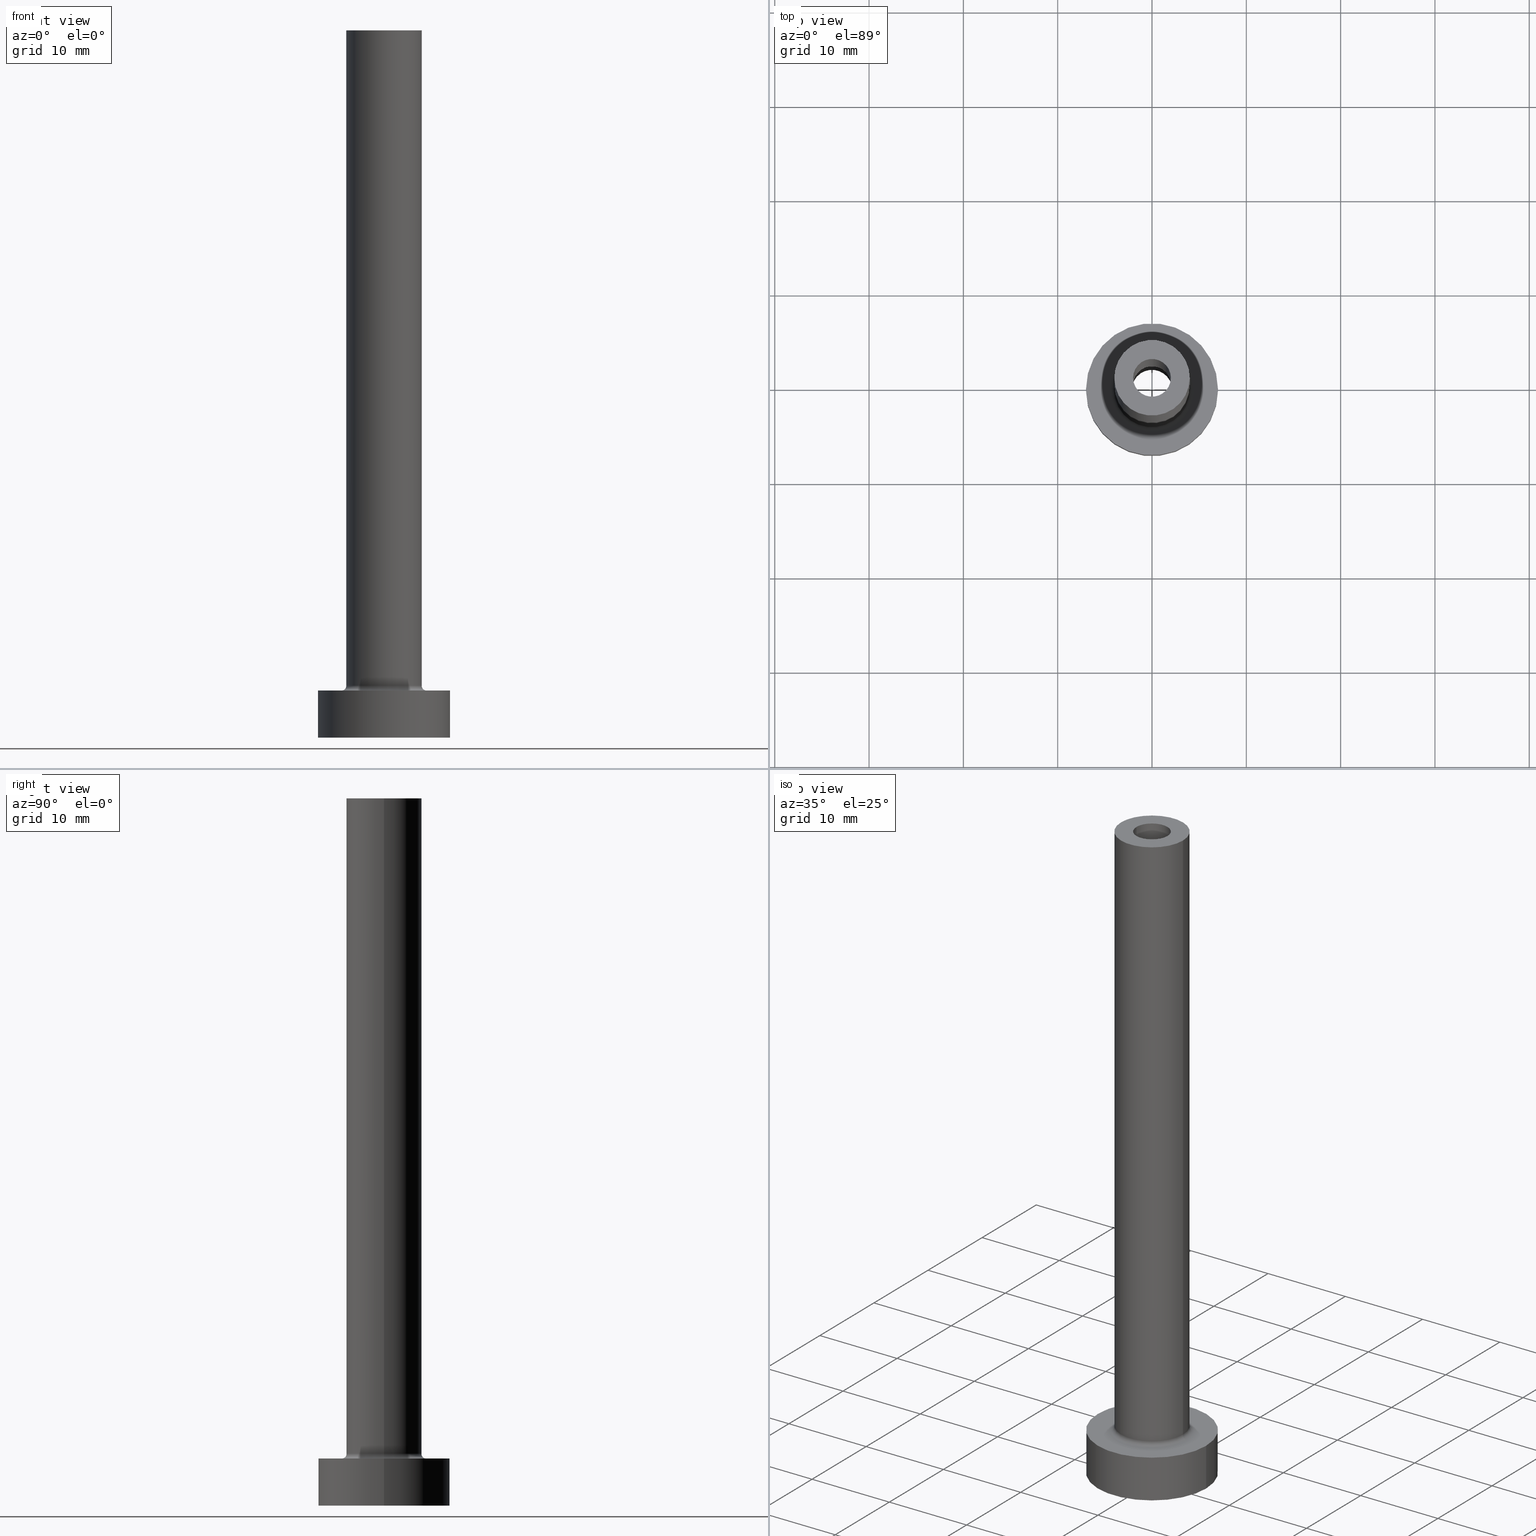
[diagram: canonical four-view strip — front | top / right | iso, engineering-drawing reading convention]
A machine part, canonical four-view strip (front | top / right | iso — engineering-drawing reading convention). The complete STEP part file that produces these views, byte-faithful:
ISO-10303-21;
HEADER;
FILE_DESCRIPTION (( 'STEP AP203' ),
    '1' );
FILE_NAME ('1875.STEP',
    '2023-02-13T17:40:39',
    ( '' ),
    ( '' ),
    'SwSTEP 2.0',
    'SolidWorks 2019',
    '' );
FILE_SCHEMA (( 'CONFIG_CONTROL_DESIGN' ));
ENDSEC;

DATA;
#1 = ORIENTED_EDGE ( 'NONE', *, *, #8, .T. ) ;
#2 = DIRECTION ( 'NONE',  ( 1.000000000000000000, 0.000000000000000000, 0.000000000000000000 ) ) ;
#3 = CARTESIAN_POINT ( 'NONE',  ( -4.000000000000000000, 0.000000000000000000, 75.00000000000001421 ) ) ;
#4 = DIRECTION ( 'NONE',  ( 0.000000000000000000, 0.000000000000000000, 1.000000000000000000 ) ) ;
#5 = CIRCLE ( 'NONE', #27, 2.149999999999999911 ) ;
#6 = AXIS2_PLACEMENT_3D ( 'NONE', #329, #110, #19 ) ;
#7 = DATE_AND_TIME ( #180, #420 ) ;
#8 = EDGE_CURVE ( 'NONE', #32, #313, #249, .T. ) ;
#9 = DIRECTION ( 'NONE',  ( -1.000000000000000000, 0.000000000000000000, 0.000000000000000000 ) ) ;
#10 = DIRECTION ( 'NONE',  ( -1.000000000000000000, 0.000000000000000000, 0.000000000000000000 ) ) ;
#11 = ORIENTED_EDGE ( 'NONE', *, *, #423, .T. ) ;
#12 = LINE ( 'NONE', #149, #281 ) ;
#13 = CC_DESIGN_PERSON_AND_ORGANIZATION_ASSIGNMENT ( #34, #173, ( #156 ) ) ;
#14 = AXIS2_PLACEMENT_3D ( 'NONE', #56, #90, #59 ) ;
#15 = CARTESIAN_POINT ( 'NONE',  ( 2.149999999999999911, 2.632990618166808742E-16, 0.000000000000000000 ) ) ;
#16 = AXIS2_PLACEMENT_3D ( 'NONE', #233, #60, #132 ) ;
#17 = ORIENTED_EDGE ( 'NONE', *, *, #345, .F. ) ;
#18 = DIRECTION ( 'NONE',  ( 1.000000000000000000, 0.000000000000000000, -0.000000000000000000 ) ) ;
#19 = DIRECTION ( 'NONE',  ( -1.000000000000000000, 0.000000000000000000, 0.000000000000000000 ) ) ;
#20 = DIRECTION ( 'NONE',  ( 0.000000000000000000, 0.000000000000000000, 1.000000000000000000 ) ) ;
#21 = UNCERTAINTY_MEASURE_WITH_UNIT (LENGTH_MEASURE( 1.000000000000000082E-05 ), #65, 'distance_accuracy_value', 'NONE');
#22 = CIRCLE ( 'NONE', #274, 2.149999999999999911 ) ;
#23 = ADVANCED_FACE ( 'NONE', ( #92, #237 ), #349, .F. ) ;
#24 = ORIENTED_EDGE ( 'NONE', *, *, #289, .F. ) ;
#25 = DIRECTION ( 'NONE',  ( -1.000000000000000000, 0.000000000000000000, 0.000000000000000000 ) ) ;
#26 = EDGE_LOOP ( 'NONE', ( #284, #224 ) ) ;
#27 = AXIS2_PLACEMENT_3D ( 'NONE', #67, #42, #177 ) ;
#28 = AXIS2_PLACEMENT_3D ( 'NONE', #363, #152, #448 ) ;
#29 = DIRECTION ( 'NONE',  ( 1.000000000000000000, 0.000000000000000000, 0.000000000000000000 ) ) ;
#30 = CARTESIAN_POINT ( 'NONE',  ( 0.000000000000000000, 0.000000000000000000, 0.000000000000000000 ) ) ;
#31 = AXIS2_PLACEMENT_3D ( 'NONE', #163, #236, #29 ) ;
#32 = VERTEX_POINT ( 'NONE', #315 ) ;
#33 = VERTEX_POINT ( 'NONE', #157 ) ;
#34 = PERSON_AND_ORGANIZATION ( #265, #49 ) ;
#35 = CC_DESIGN_APPROVAL ( #206, ( #73 ) ) ;
#36 = ORIENTED_EDGE ( 'NONE', *, *, #119, .T. ) ;
#37 = PERSON_AND_ORGANIZATION ( #265, #49 ) ;
#38 = EDGE_CURVE ( 'NONE', #232, #361, #159, .T. ) ;
#39 = EDGE_LOOP ( 'NONE', ( #457, #81, #346, #352 ) ) ;
#40 = ADVANCED_FACE ( 'NONE', ( #223 ), #151, .F. ) ;
#41 = APPLICATION_PROTOCOL_DEFINITION ( 'international standard', 'config_control_design', 1994, #203 ) ;
#42 = DIRECTION ( 'NONE',  ( -0.000000000000000000, -0.000000000000000000, -1.000000000000000000 ) ) ;
#43 = ADVANCED_BREP_SHAPE_REPRESENTATION ( '1875', ( #272, #377 ), #111 ) ;
#44 = AXIS2_PLACEMENT_3D ( 'NONE', #190, #184, #333 ) ;
#45 = APPROVAL ( #382, 'NEUR�EN�' ) ;
#46 = DIRECTION ( 'NONE',  ( 0.000000000000000000, 0.000000000000000000, -1.000000000000000000 ) ) ;
#47 = EDGE_LOOP ( 'NONE', ( #85, #36, #437, #24 ) ) ;
#48 = DIRECTION ( 'NONE',  ( 0.000000000000000000, 0.000000000000000000, 1.000000000000000000 ) ) ;
#49 = ORGANIZATION ( 'NEUR�EN�', 'NEUR�EN�', '' ) ;
#50 = ORIENTED_EDGE ( 'NONE', *, *, #153, .F. ) ;
#51 = CARTESIAN_POINT ( 'NONE',  ( 2.149999999999999911, 2.632990618166808742E-16, 30.00000000000001421 ) ) ;
#52 = LINE ( 'NONE', #217, #208 ) ;
#53 = CC_DESIGN_PERSON_AND_ORGANIZATION_ASSIGNMENT ( #70, #353, ( #212 ) ) ;
#54 = TOROIDAL_SURFACE ( 'NONE', #436, 4.500000000000000888, 0.5000000000000000000 ) ;
#55 = ORIENTED_EDGE ( 'NONE', *, *, #117, .T. ) ;
#56 = CARTESIAN_POINT ( 'NONE',  ( 0.000000000000000000, 0.000000000000000000, 5.000000000000000000 ) ) ;
#57 = AXIS2_PLACEMENT_3D ( 'NONE', #305, #87, #83 ) ;
#58 = CARTESIAN_POINT ( 'NONE',  ( -7.000000000000000000, 0.000000000000000000, 5.000000000000000000 ) ) ;
#59 = DIRECTION ( 'NONE',  ( 1.000000000000000000, 0.000000000000000000, 0.000000000000000000 ) ) ;
#60 = DIRECTION ( 'NONE',  ( 0.000000000000000000, 0.000000000000000000, 1.000000000000000000 ) ) ;
#61 = VERTEX_POINT ( 'NONE', #341 ) ;
#62 = DIRECTION ( 'NONE',  ( 0.000000000000000000, 0.000000000000000000, 1.000000000000000000 ) ) ;
#63 = ADVANCED_FACE ( 'NONE', ( #150 ), #192, .F. ) ;
#64 = PERSON_AND_ORGANIZATION ( #265, #49 ) ;
#65 =( LENGTH_UNIT ( ) NAMED_UNIT ( * ) SI_UNIT ( .MILLI., .METRE. ) );
#66 = AXIS2_PLACEMENT_3D ( 'NONE', #390, #321, #318 ) ;
#67 = CARTESIAN_POINT ( 'NONE',  ( 0.000000000000000000, 0.000000000000000000, 0.000000000000000000 ) ) ;
#68 = AXIS2_PLACEMENT_3D ( 'NONE', #278, #348, #124 ) ;
#69 = EDGE_CURVE ( 'NONE', #198, #368, #221, .T. ) ;
#70 = PERSON_AND_ORGANIZATION ( #265, #49 ) ;
#71 = PLANE ( 'NONE',  #170 ) ;
#72 = CARTESIAN_POINT ( 'NONE',  ( -2.149999999999999911, 0.000000000000000000, 30.00000000000001421 ) ) ;
#73 = SECURITY_CLASSIFICATION ( '', '', #189 ) ;
#74 = CARTESIAN_POINT ( 'NONE',  ( 0.000000000000000000, 0.000000000000000000, 75.00000000000001421 ) ) ;
#75 = CARTESIAN_POINT ( 'NONE',  ( 0.000000000000000000, 0.000000000000000000, 30.00000000000001421 ) ) ;
#76 = DIRECTION ( 'NONE',  ( 0.000000000000000000, 0.000000000000000000, 1.000000000000000000 ) ) ;
#77 = ORIENTED_EDGE ( 'NONE', *, *, #309, .F. ) ;
#78 = PRODUCT ( '1875', '1875', '', ( #100 ) ) ;
#79 = CARTESIAN_POINT ( 'NONE',  ( 4.000000000000000000, 4.898587196589412829E-16, 75.00000000000001421 ) ) ;
#80 = AXIS2_PLACEMENT_3D ( 'NONE', #385, #426, #101 ) ;
#81 = ORIENTED_EDGE ( 'NONE', *, *, #8, .F. ) ;
#82 = CARTESIAN_POINT ( 'NONE',  ( -4.000000000000000000, 0.000000000000000000, 5.500000000000005329 ) ) ;
#83 = DIRECTION ( 'NONE',  ( 1.000000000000000000, 0.000000000000000000, 0.000000000000000000 ) ) ;
#84 = ADVANCED_FACE ( 'NONE', ( #401 ), #302, .T. ) ;
#85 = ORIENTED_EDGE ( 'NONE', *, *, #345, .T. ) ;
#86 = FACE_OUTER_BOUND ( 'NONE', #411, .T. ) ;
#87 = DIRECTION ( 'NONE',  ( -0.000000000000000000, -0.000000000000000000, -1.000000000000000000 ) ) ;
#88 = DIRECTION ( 'NONE',  ( 0.000000000000000000, 0.000000000000000000, 1.000000000000000000 ) ) ;
#89 = EDGE_CURVE ( 'NONE', #313, #32, #210, .T. ) ;
#90 = DIRECTION ( 'NONE',  ( 0.000000000000000000, 0.000000000000000000, 1.000000000000000000 ) ) ;
#91 = CARTESIAN_POINT ( 'NONE',  ( 0.000000000000000000, 0.000000000000000000, 0.000000000000000000 ) ) ;
#92 = FACE_BOUND ( 'NONE', #171, .T. ) ;
#93 = CARTESIAN_POINT ( 'NONE',  ( -7.000000000000000000, 0.000000000000000000, 0.000000000000000000 ) ) ;
#94 = CC_DESIGN_APPROVAL ( #134, ( #212 ) ) ;
#95 = EDGE_CURVE ( 'NONE', #33, #128, #96, .T. ) ;
#96 = CIRCLE ( 'NONE', #130, 7.000000000000000000 ) ;
#97 = ORIENTED_EDGE ( 'NONE', *, *, #289, .T. ) ;
#98 = DATE_AND_TIME ( #316, #200 ) ;
#99 = FACE_OUTER_BOUND ( 'NONE', #202, .T. ) ;
#100 = MECHANICAL_CONTEXT ( 'NONE', #203, 'mechanical' ) ;
#101 = DIRECTION ( 'NONE',  ( 1.000000000000000000, 0.000000000000000000, -0.000000000000000000 ) ) ;
#102 = VECTOR ( 'NONE', #327, 1000.000000000000000 ) ;
#103 = CARTESIAN_POINT ( 'NONE',  ( -2.149999999999999911, 0.000000000000000000, 0.000000000000000000 ) ) ;
#104 = VECTOR ( 'NONE', #118, 1000.000000000000000 ) ;
#105 = DIRECTION ( 'NONE',  ( 0.000000000000000000, 0.000000000000000000, 1.000000000000000000 ) ) ;
#106 = CARTESIAN_POINT ( 'NONE',  ( 4.500000000000000888, 0.000000000000000000, 5.000000000000002665 ) ) ;
#107 = VERTEX_POINT ( 'NONE', #58 ) ;
#108 = CARTESIAN_POINT ( 'NONE',  ( 7.000000000000000000, 8.572527594031473190E-16, 5.000000000000000000 ) ) ;
#109 = CARTESIAN_POINT ( 'NONE',  ( 0.000000000000000000, 0.000000000000000000, 5.000000000000000000 ) ) ;
#110 = DIRECTION ( 'NONE',  ( -0.000000000000000000, -0.000000000000000000, -1.000000000000000000 ) ) ;
#111 =( GEOMETRIC_REPRESENTATION_CONTEXT ( 3 ) GLOBAL_UNCERTAINTY_ASSIGNED_CONTEXT ( ( #21 ) ) GLOBAL_UNIT_ASSIGNED_CONTEXT ( ( #65, #430, #380 ) ) REPRESENTATION_CONTEXT ( 'NONE', 'WORKASPACE' ) );
#112 = CARTESIAN_POINT ( 'NONE',  ( 0.000000000000000000, 0.000000000000000000, 5.500000000000005329 ) ) ;
#113 = DIRECTION ( 'NONE',  ( 0.000000000000000000, 0.000000000000000000, 1.000000000000000000 ) ) ;
#114 = PERSON_AND_ORGANIZATION ( #265, #49 ) ;
#115 = CARTESIAN_POINT ( 'NONE',  ( 4.500000000000000888, 0.000000000000000000, 5.500000000000005329 ) ) ;
#116 = PERSON_AND_ORGANIZATION ( #265, #49 ) ;
#117 = EDGE_CURVE ( 'NONE', #413, #193, #391, .T. ) ;
#118 = DIRECTION ( 'NONE',  ( 0.000000000000000000, 0.000000000000000000, -1.000000000000000000 ) ) ;
#119 = EDGE_CURVE ( 'NONE', #211, #198, #314, .T. ) ;
#120 = AXIS2_PLACEMENT_3D ( 'NONE', #247, #351, #388 ) ;
#121 = ORIENTED_EDGE ( 'NONE', *, *, #338, .T. ) ;
#122 = CARTESIAN_POINT ( 'NONE',  ( 0.000000000000000000, 0.000000000000000000, 75.00000000000001421 ) ) ;
#123 = DIRECTION ( 'NONE',  ( 0.000000000000000000, 0.000000000000000000, 1.000000000000000000 ) ) ;
#124 = DIRECTION ( 'NONE',  ( 1.000000000000000000, 0.000000000000000000, 0.000000000000000000 ) ) ;
#125 = DIRECTION ( 'NONE',  ( -0.000000000000000000, -0.000000000000000000, -1.000000000000000000 ) ) ;
#126 = PRODUCT_RELATED_PRODUCT_CATEGORY ( 'detail', '', ( #78 ) ) ;
#127 = EDGE_LOOP ( 'NONE', ( #379, #77, #454, #195 ) ) ;
#128 = VERTEX_POINT ( 'NONE', #93 ) ;
#129 = AXIS2_PLACEMENT_3D ( 'NONE', #262, #155, #258 ) ;
#130 = AXIS2_PLACEMENT_3D ( 'NONE', #91, #456, #410 ) ;
#131 = ORIENTED_EDGE ( 'NONE', *, *, #395, .T. ) ;
#132 = DIRECTION ( 'NONE',  ( 1.000000000000000000, 0.000000000000000000, 0.000000000000000000 ) ) ;
#133 = EDGE_LOOP ( 'NONE', ( #331, #142, #160, #226 ) ) ;
#134 = APPROVAL ( #326, 'NEUR�EN�' ) ;
#135 = LINE ( 'NONE', #146, #102 ) ;
#136 = EDGE_LOOP ( 'NONE', ( #241, #439, #1, #238 ) ) ;
#137 = DIRECTION ( 'NONE',  ( -0.000000000000000000, -0.000000000000000000, -1.000000000000000000 ) ) ;
#138 = CARTESIAN_POINT ( 'NONE',  ( 0.000000000000000000, 0.000000000000000000, 0.000000000000000000 ) ) ;
#139 = CARTESIAN_POINT ( 'NONE',  ( 0.000000000000000000, 0.000000000000000000, 5.000000000000000000 ) ) ;
#140 = ORIENTED_EDGE ( 'NONE', *, *, #174, .F. ) ;
#141 = CARTESIAN_POINT ( 'NONE',  ( -4.500000000000000888, 5.510910596163089556E-16, 5.500000000000005329 ) ) ;
#142 = ORIENTED_EDGE ( 'NONE', *, *, #338, .F. ) ;
#143 = COORDINATED_UNIVERSAL_TIME_OFFSET ( 1, 0, .AHEAD. ) ;
#144 = APPROVAL_PERSON_ORGANIZATION ( #323, #134, #283 ) ;
#145 = PERSON_AND_ORGANIZATION ( #265, #49 ) ;
#146 = CARTESIAN_POINT ( 'NONE',  ( 2.149999999999999911, 2.632990618166808742E-16, 36.08111831820431803 ) ) ;
#147 = CARTESIAN_POINT ( 'NONE',  ( -4.000000000000000000, 0.000000000000000000, 75.00000000000001421 ) ) ;
#148 = EDGE_CURVE ( 'NONE', #250, #271, #453, .T. ) ;
#149 = CARTESIAN_POINT ( 'NONE',  ( 7.000000000000000000, 8.572527594031473190E-16, 5.000000000000000000 ) ) ;
#150 = FACE_OUTER_BOUND ( 'NONE', #196, .T. ) ;
#151 = TOROIDAL_SURFACE ( 'NONE', #175, 4.500000000000000888, 0.5000000000000000000 ) ;
#152 = DIRECTION ( 'NONE',  ( 0.000000000000000000, 0.000000000000000000, 1.000000000000000000 ) ) ;
#153 = EDGE_CURVE ( 'NONE', #271, #361, #135, .T. ) ;
#154 = LINE ( 'NONE', #79, #246 ) ;
#155 = DIRECTION ( 'NONE',  ( 0.000000000000000000, 0.000000000000000000, 1.000000000000000000 ) ) ;
#156 = PRODUCT_DEFINITION_FORMATION_WITH_SPECIFIED_SOURCE ( 'LIBOVOLN�', '', #78, .NOT_KNOWN. ) ;
#157 = CARTESIAN_POINT ( 'NONE',  ( 7.000000000000000000, 8.572527594031473190E-16, 0.000000000000000000 ) ) ;
#158 = DIRECTION ( 'NONE',  ( 0.000000000000000000, 0.000000000000000000, -1.000000000000000000 ) ) ;
#159 = CIRCLE ( 'NONE', #57, 2.149999999999999911 ) ;
#160 = ORIENTED_EDGE ( 'NONE', *, *, #182, .T. ) ;
#161 = ORIENTED_EDGE ( 'NONE', *, *, #38, .F. ) ;
#162 = FACE_BOUND ( 'NONE', #260, .T. ) ;
#163 = CARTESIAN_POINT ( 'NONE',  ( 0.000000000000000000, 0.000000000000000000, 5.000000000000000000 ) ) ;
#164 = ORIENTED_EDGE ( 'NONE', *, *, #95, .T. ) ;
#165 = DIRECTION ( 'NONE',  ( 1.000000000000000000, 0.000000000000000000, -0.000000000000000000 ) ) ;
#166 = ADVANCED_FACE ( 'NONE', ( #178 ), #244, .T. ) ;
#167 = ADVANCED_FACE ( 'NONE', ( #461, #383 ), #71, .F. ) ;
#168 = DIRECTION ( 'NONE',  ( 1.000000000000000000, 0.000000000000000000, 0.000000000000000000 ) ) ;
#169 = COORDINATED_UNIVERSAL_TIME_OFFSET ( 1, 0, .AHEAD. ) ;
#170 = AXIS2_PLACEMENT_3D ( 'NONE', #359, #459, #357 ) ;
#171 = EDGE_LOOP ( 'NONE', ( #161, #231 ) ) ;
#172 = APPROVAL_PERSON_ORGANIZATION ( #114, #206, #336 ) ;
#173 = PERSON_AND_ORGANIZATION_ROLE ( 'design_supplier' ) ;
#174 = EDGE_CURVE ( 'NONE', #193, #413, #229, .T. ) ;
#175 = AXIS2_PLACEMENT_3D ( 'NONE', #112, #20, #408 ) ;
#176 = DIRECTION ( 'NONE',  ( 1.000000000000000000, 0.000000000000000000, 0.000000000000000000 ) ) ;
#177 = DIRECTION ( 'NONE',  ( 1.000000000000000000, 0.000000000000000000, 0.000000000000000000 ) ) ;
#178 = FACE_OUTER_BOUND ( 'NONE', #133, .T. ) ;
#179 = EDGE_LOOP ( 'NONE', ( #277, #11, #97, #275 ) ) ;
#180 = CALENDAR_DATE ( 2023, 13, 2 ) ;
#181 = AXIS2_PLACEMENT_3D ( 'NONE', #122, #373, #406 ) ;
#182 = EDGE_CURVE ( 'NONE', #263, #313, #290, .T. ) ;
#183 = DIRECTION ( 'NONE',  ( 1.000000000000000000, 0.000000000000000000, 0.000000000000000000 ) ) ;
#184 = DIRECTION ( 'NONE',  ( 0.000000000000000000, 0.000000000000000000, 1.000000000000000000 ) ) ;
#185 = DIRECTION ( 'NONE',  ( 0.000000000000000000, 0.000000000000000000, 1.000000000000000000 ) ) ;
#186 = EDGE_LOOP ( 'NONE', ( #322, #450 ) ) ;
#187 = CARTESIAN_POINT ( 'NONE',  ( 0.000000000000000000, 0.000000000000000000, 5.000000000000000000 ) ) ;
#188 = AXIS2_PLACEMENT_3D ( 'NONE', #187, #113, #18 ) ;
#189 = SECURITY_CLASSIFICATION_LEVEL ( 'unclassified' ) ;
#190 = CARTESIAN_POINT ( 'NONE',  ( 0.000000000000000000, 0.000000000000000000, 75.00000000000001421 ) ) ;
#191 = LINE ( 'NONE', #328, #267 ) ;
#192 = CYLINDRICAL_SURFACE ( 'NONE', #412, 2.149999999999999911 ) ;
#193 = VERTEX_POINT ( 'NONE', #106 ) ;
#194 = ORIENTED_EDGE ( 'NONE', *, *, #197, .T. ) ;
#195 = ORIENTED_EDGE ( 'NONE', *, *, #261, .T. ) ;
#196 = EDGE_LOOP ( 'NONE', ( #50, #307, #334, #431 ) ) ;
#197 = EDGE_CURVE ( 'NONE', #361, #232, #5, .T. ) ;
#198 = VERTEX_POINT ( 'NONE', #209 ) ;
#199 = CC_DESIGN_PERSON_AND_ORGANIZATION_ASSIGNMENT ( #64, #205, ( #156 ) ) ;
#200 = LOCAL_TIME ( 18, 40, 39.00000000000000000, #169 ) ;
#201 = AXIS2_PLACEMENT_3D ( 'NONE', #30, #88, #165 ) ;
#202 = EDGE_LOOP ( 'NONE', ( #354, #234, #164, #421 ) ) ;
#203 = APPLICATION_CONTEXT ( 'configuration controlled 3d designs of mechanical parts and assemblies' ) ;
#204 = ORIENTED_EDGE ( 'NONE', *, *, #95, .F. ) ;
#205 = PERSON_AND_ORGANIZATION_ROLE ( 'creator' ) ;
#206 = APPROVAL ( #402, 'NEUR�EN�' ) ;
#207 = EDGE_LOOP ( 'NONE', ( #299, #404, #140, #347 ) ) ;
#208 = VECTOR ( 'NONE', #301, 1000.000000000000000 ) ;
#209 = CARTESIAN_POINT ( 'NONE',  ( 2.000000000000000000, 2.449293598294705921E-16, 30.00000000000001421 ) ) ;
#210 = CIRCLE ( 'NONE', #16, 4.000000000000000000 ) ;
#211 = VERTEX_POINT ( 'NONE', #286 ) ;
#212 = PRODUCT_DEFINITION ( 'NEZN�M�', '', #156, #389 ) ;
#213 = CALENDAR_DATE ( 2023, 13, 2 ) ;
#214 = CIRCLE ( 'NONE', #396, 4.000000000000000000 ) ;
#215 = CARTESIAN_POINT ( 'NONE',  ( 0.000000000000000000, 0.000000000000000000, 36.08111831820431803 ) ) ;
#216 = ADVANCED_FACE ( 'NONE', ( #427 ), #251, .F. ) ;
#217 = CARTESIAN_POINT ( 'NONE',  ( -7.000000000000000000, 0.000000000000000000, 5.000000000000000000 ) ) ;
#218 = CARTESIAN_POINT ( 'NONE',  ( -2.000000000000000000, 0.000000000000000000, 30.00000000000001421 ) ) ;
#219 = CIRCLE ( 'NONE', #68, 2.000000000000000000 ) ;
#220 = APPROVAL_DATE_TIME ( #397, #206 ) ;
#221 = CIRCLE ( 'NONE', #300, 2.000000000000000000 ) ;
#222 = CYLINDRICAL_SURFACE ( 'NONE', #6, 4.000000000000000000 ) ;
#223 = FACE_OUTER_BOUND ( 'NONE', #39, .T. ) ;
#224 = ORIENTED_EDGE ( 'NONE', *, *, #367, .F. ) ;
#225 = FACE_OUTER_BOUND ( 'NONE', #136, .T. ) ;
#226 = ORIENTED_EDGE ( 'NONE', *, *, #89, .T. ) ;
#227 = EDGE_CURVE ( 'NONE', #313, #413, #287, .T. ) ;
#228 = PRODUCT_DEFINITION_SHAPE ( 'NONE', 'NONE',  #212 ) ;
#229 = CIRCLE ( 'NONE', #428, 4.500000000000000888 ) ;
#230 = LOCAL_TIME ( 18, 40, 39.00000000000000000, #256 ) ;
#231 = ORIENTED_EDGE ( 'NONE', *, *, #197, .F. ) ;
#232 = VERTEX_POINT ( 'NONE', #103 ) ;
#233 = CARTESIAN_POINT ( 'NONE',  ( 0.000000000000000000, 0.000000000000000000, 5.500000000000005329 ) ) ;
#234 = ORIENTED_EDGE ( 'NONE', *, *, #378, .T. ) ;
#235 = ADVANCED_FACE ( 'NONE', ( #99 ), #248, .T. ) ;
#236 = DIRECTION ( 'NONE',  ( -0.000000000000000000, -0.000000000000000000, -1.000000000000000000 ) ) ;
#237 = FACE_OUTER_BOUND ( 'NONE', #414, .T. ) ;
#238 = ORIENTED_EDGE ( 'NONE', *, *, #182, .F. ) ;
#239 = CARTESIAN_POINT ( 'NONE',  ( 0.000000000000000000, 0.000000000000000000, 30.00000000000001421 ) ) ;
#240 = CIRCLE ( 'NONE', #409, 7.000000000000000000 ) ;
#241 = ORIENTED_EDGE ( 'NONE', *, *, #395, .F. ) ;
#242 = APPROVAL_DATE_TIME ( #98, #45 ) ;
#243 = PLANE ( 'NONE',  #80 ) ;
#244 = CYLINDRICAL_SURFACE ( 'NONE', #66, 4.000000000000000000 ) ;
#245 = AXIS2_PLACEMENT_3D ( 'NONE', #393, #355, #9 ) ;
#246 = VECTOR ( 'NONE', #400, 1000.000000000000000 ) ;
#247 = CARTESIAN_POINT ( 'NONE',  ( 0.000000000000000000, 0.000000000000000000, 30.00000000000001421 ) ) ;
#248 = CYLINDRICAL_SURFACE ( 'NONE', #445, 7.000000000000000000 ) ;
#249 = CIRCLE ( 'NONE', #407, 4.000000000000000000 ) ;
#250 = VERTEX_POINT ( 'NONE', #72 ) ;
#251 = CYLINDRICAL_SURFACE ( 'NONE', #245, 2.000000000000000000 ) ;
#252 = ADVANCED_FACE ( 'NONE', ( #86 ), #446, .F. ) ;
#253 = ADVANCED_FACE ( 'NONE', ( #225 ), #222, .T. ) ;
#254 = DATE_AND_TIME ( #213, #257 ) ;
#255 = DIRECTION ( 'NONE',  ( -0.000000000000000000, -0.000000000000000000, -1.000000000000000000 ) ) ;
#256 = COORDINATED_UNIVERSAL_TIME_OFFSET ( 1, 0, .AHEAD. ) ;
#257 = LOCAL_TIME ( 18, 40, 39.00000000000000000, #440 ) ;
#258 = DIRECTION ( 'NONE',  ( 1.000000000000000000, 0.000000000000000000, 0.000000000000000000 ) ) ;
#259 = DIRECTION ( 'NONE',  ( -1.000000000000000000, 0.000000000000000000, 0.000000000000000000 ) ) ;
#260 = EDGE_LOOP ( 'NONE', ( #17, #308 ) ) ;
#261 = EDGE_CURVE ( 'NONE', #128, #33, #364, .T. ) ;
#262 = CARTESIAN_POINT ( 'NONE',  ( 0.000000000000000000, 0.000000000000000000, 0.000000000000000000 ) ) ;
#263 = VERTEX_POINT ( 'NONE', #147 ) ;
#264 = FACE_OUTER_BOUND ( 'NONE', #47, .T. ) ;
#265 = PERSON ( 'NEUR�EN�', 'NEUR�EN�', 'NEUR�EN�', ('NEUR�EN�'), ('NEUR�EN�'), ('NEUR�EN�') ) ;
#266 = CYLINDRICAL_SURFACE ( 'NONE', #181, 2.000000000000000000 ) ;
#267 = VECTOR ( 'NONE', #46, 1000.000000000000000 ) ;
#268 = DIRECTION ( 'NONE',  ( 0.000000000000000000, 0.000000000000000000, 1.000000000000000000 ) ) ;
#269 = EDGE_CURVE ( 'NONE', #32, #193, #319, .T. ) ;
#270 = EDGE_LOOP ( 'NONE', ( #121, #131 ) ) ;
#271 = VERTEX_POINT ( 'NONE', #51 ) ;
#272 = MANIFOLD_SOLID_BREP ( 'Odebrat vysunut�m4', #369 ) ;
#273 = VECTOR ( 'NONE', #416, 1000.000000000000000 ) ;
#274 = AXIS2_PLACEMENT_3D ( 'NONE', #371, #48, #340 ) ;
#275 = ORIENTED_EDGE ( 'NONE', *, *, #69, .F. ) ;
#276 = ADVANCED_FACE ( 'NONE', ( #298, #304 ), #403, .T. ) ;
#277 = ORIENTED_EDGE ( 'NONE', *, *, #119, .F. ) ;
#278 = CARTESIAN_POINT ( 'NONE',  ( 0.000000000000000000, 0.000000000000000000, 75.00000000000001421 ) ) ;
#279 = CARTESIAN_POINT ( 'NONE',  ( 2.000000000000000000, 2.449293598294705921E-16, 75.00000000000001421 ) ) ;
#280 = ORIENTED_EDGE ( 'NONE', *, *, #339, .F. ) ;
#281 = VECTOR ( 'NONE', #438, 1000.000000000000000 ) ;
#282 = APPROVAL_DATE_TIME ( #392, #134 ) ;
#283 = APPROVAL_ROLE ( '' ) ;
#284 = ORIENTED_EDGE ( 'NONE', *, *, #148, .F. ) ;
#285 = FACE_OUTER_BOUND ( 'NONE', #207, .T. ) ;
#286 = CARTESIAN_POINT ( 'NONE',  ( 2.000000000000000000, 2.449293598294705921E-16, 75.00000000000001421 ) ) ;
#287 = CIRCLE ( 'NONE', #386, 0.5000000000000004441 ) ;
#288 = AXIS2_PLACEMENT_3D ( 'NONE', #215, #360, #10 ) ;
#289 = EDGE_CURVE ( 'NONE', #61, #368, #398, .T. ) ;
#290 = LINE ( 'NONE', #3, #332 ) ;
#291 = CC_DESIGN_DATE_AND_TIME_ASSIGNMENT ( #7, #292, ( #212 ) ) ;
#292 = DATE_TIME_ROLE ( 'creation_date' ) ;
#293 = DIRECTION ( 'NONE',  ( 1.224646799147353207E-16, 1.000000000000000000, -0.000000000000000000 ) ) ;
#294 = CARTESIAN_POINT ( 'NONE',  ( 0.000000000000000000, 0.000000000000000000, 5.000000000000000000 ) ) ;
#295 = CC_DESIGN_DATE_AND_TIME_ASSIGNMENT ( #254, #362, ( #73 ) ) ;
#296 = VERTEX_POINT ( 'NONE', #441 ) ;
#297 = CC_DESIGN_SECURITY_CLASSIFICATION ( #73, ( #156 ) ) ;
#298 = FACE_BOUND ( 'NONE', #342, .T. ) ;
#299 = ORIENTED_EDGE ( 'NONE', *, *, #89, .F. ) ;
#300 = AXIS2_PLACEMENT_3D ( 'NONE', #75, #185, #330 ) ;
#301 = DIRECTION ( 'NONE',  ( -0.000000000000000000, -0.000000000000000000, -1.000000000000000000 ) ) ;
#302 = CYLINDRICAL_SURFACE ( 'NONE', #335, 7.000000000000000000 ) ;
#303 = ADVANCED_FACE ( 'NONE', ( #264 ), #266, .F. ) ;
#304 = FACE_OUTER_BOUND ( 'NONE', #372, .T. ) ;
#305 = CARTESIAN_POINT ( 'NONE',  ( 0.000000000000000000, 0.000000000000000000, 0.000000000000000000 ) ) ;
#306 = APPLICATION_CONTEXT ( 'configuration controlled 3d designs of mechanical parts and assemblies' ) ;
#307 = ORIENTED_EDGE ( 'NONE', *, *, #367, .T. ) ;
#308 = ORIENTED_EDGE ( 'NONE', *, *, #423, .F. ) ;
#309 = EDGE_CURVE ( 'NONE', #107, #447, #240, .T. ) ;
#310 = CARTESIAN_POINT ( 'NONE',  ( 0.000000000000000000, 0.000000000000000000, 5.500000000000005329 ) ) ;
#311 = FACE_OUTER_BOUND ( 'NONE', #270, .T. ) ;
#312 = CIRCLE ( 'NONE', #44, 2.000000000000000000 ) ;
#313 = VERTEX_POINT ( 'NONE', #82 ) ;
#314 = LINE ( 'NONE', #279, #273 ) ;
#315 = CARTESIAN_POINT ( 'NONE',  ( 4.000000000000000000, 4.898587196589412829E-16, 5.500000000000005329 ) ) ;
#316 = CALENDAR_DATE ( 2023, 13, 2 ) ;
#317 = EDGE_CURVE ( 'NONE', #107, #128, #52, .T. ) ;
#318 = DIRECTION ( 'NONE',  ( -1.000000000000000000, 0.000000000000000000, 0.000000000000000000 ) ) ;
#319 = CIRCLE ( 'NONE', #375, 0.5000000000000004441 ) ;
#320 = PERSON_AND_ORGANIZATION_ROLE ( 'design_owner' ) ;
#321 = DIRECTION ( 'NONE',  ( -0.000000000000000000, -0.000000000000000000, -1.000000000000000000 ) ) ;
#322 = ORIENTED_EDGE ( 'NONE', *, *, #455, .T. ) ;
#323 = PERSON_AND_ORGANIZATION ( #265, #49 ) ;
#324 = DIRECTION ( 'NONE',  ( -0.000000000000000000, -0.000000000000000000, -1.000000000000000000 ) ) ;
#325 = ORIENTED_EDGE ( 'NONE', *, *, #415, .T. ) ;
#326 = APPROVAL_STATUS ( 'not_yet_approved' ) ;
#327 = DIRECTION ( 'NONE',  ( 0.000000000000000000, 0.000000000000000000, -1.000000000000000000 ) ) ;
#328 = CARTESIAN_POINT ( 'NONE',  ( -2.149999999999999911, 0.000000000000000000, 36.08111831820431803 ) ) ;
#329 = CARTESIAN_POINT ( 'NONE',  ( 0.000000000000000000, 0.000000000000000000, 75.00000000000001421 ) ) ;
#330 = DIRECTION ( 'NONE',  ( 1.000000000000000000, 0.000000000000000000, 0.000000000000000000 ) ) ;
#331 = ORIENTED_EDGE ( 'NONE', *, *, #366, .F. ) ;
#332 = VECTOR ( 'NONE', #324, 1000.000000000000000 ) ;
#333 = DIRECTION ( 'NONE',  ( 1.000000000000000000, 0.000000000000000000, 0.000000000000000000 ) ) ;
#334 = ORIENTED_EDGE ( 'NONE', *, *, #339, .T. ) ;
#335 = AXIS2_PLACEMENT_3D ( 'NONE', #442, #125, #25 ) ;
#336 = APPROVAL_ROLE ( '' ) ;
#337 = DIRECTION ( 'NONE',  ( 0.000000000000000000, 0.000000000000000000, -1.000000000000000000 ) ) ;
#338 = EDGE_CURVE ( 'NONE', #263, #296, #214, .T. ) ;
#339 = EDGE_CURVE ( 'NONE', #250, #232, #191, .T. ) ;
#340 = DIRECTION ( 'NONE',  ( 1.000000000000000000, 0.000000000000000000, 0.000000000000000000 ) ) ;
#341 = CARTESIAN_POINT ( 'NONE',  ( -2.000000000000000000, 0.000000000000000000, 75.00000000000001421 ) ) ;
#342 = EDGE_LOOP ( 'NONE', ( #451, #55 ) ) ;
#343 = CIRCLE ( 'NONE', #120, 2.000000000000000000 ) ;
#344 = CARTESIAN_POINT ( 'NONE',  ( 0.000000000000000000, 0.000000000000000000, 36.08111831820431803 ) ) ;
#345 = EDGE_CURVE ( 'NONE', #61, #211, #312, .T. ) ;
#346 = ORIENTED_EDGE ( 'NONE', *, *, #269, .T. ) ;
#347 = ORIENTED_EDGE ( 'NONE', *, *, #269, .F. ) ;
#348 = DIRECTION ( 'NONE',  ( 0.000000000000000000, 0.000000000000000000, 1.000000000000000000 ) ) ;
#349 = PLANE ( 'NONE',  #201 ) ;
#350 = CC_DESIGN_PERSON_AND_ORGANIZATION_ASSIGNMENT ( #37, #320, ( #78 ) ) ;
#351 = DIRECTION ( 'NONE',  ( 0.000000000000000000, 0.000000000000000000, 1.000000000000000000 ) ) ;
#352 = ORIENTED_EDGE ( 'NONE', *, *, #117, .F. ) ;
#353 = PERSON_AND_ORGANIZATION_ROLE ( 'creator' ) ;
#354 = ORIENTED_EDGE ( 'NONE', *, *, #415, .F. ) ;
#355 = DIRECTION ( 'NONE',  ( 0.000000000000000000, 0.000000000000000000, -1.000000000000000000 ) ) ;
#356 = APPLICATION_PROTOCOL_DEFINITION ( 'international standard', 'config_control_design', 1994, #306 ) ;
#357 = DIRECTION ( 'NONE',  ( 1.000000000000000000, 0.000000000000000000, -0.000000000000000000 ) ) ;
#358 = COORDINATED_UNIVERSAL_TIME_OFFSET ( 1, 0, .AHEAD. ) ;
#359 = CARTESIAN_POINT ( 'NONE',  ( 0.000000000000000000, 0.000000000000000000, 30.00000000000001421 ) ) ;
#360 = DIRECTION ( 'NONE',  ( 0.000000000000000000, 0.000000000000000000, -1.000000000000000000 ) ) ;
#361 = VERTEX_POINT ( 'NONE', #15 ) ;
#362 = DATE_TIME_ROLE ( 'classification_date' ) ;
#363 = CARTESIAN_POINT ( 'NONE',  ( 0.000000000000000000, 0.000000000000000000, 75.00000000000001421 ) ) ;
#364 = CIRCLE ( 'NONE', #129, 7.000000000000000000 ) ;
#365 = DIRECTION ( 'NONE',  ( 0.000000000000000000, -1.000000000000000000, 0.000000000000000000 ) ) ;
#366 = EDGE_CURVE ( 'NONE', #296, #32, #154, .T. ) ;
#367 = EDGE_CURVE ( 'NONE', #271, #250, #22, .T. ) ;
#368 = VERTEX_POINT ( 'NONE', #218 ) ;
#369 = CLOSED_SHELL ( 'NONE', ( #303, #252, #449, #253, #235, #84, #276, #23, #166, #433, #40, #63, #167, #216 ) ) ;
#370 = SHAPE_DEFINITION_REPRESENTATION ( #228, #43 ) ;
#371 = CARTESIAN_POINT ( 'NONE',  ( 0.000000000000000000, 0.000000000000000000, 30.00000000000001421 ) ) ;
#372 = EDGE_LOOP ( 'NONE', ( #384, #325 ) ) ;
#373 = DIRECTION ( 'NONE',  ( 0.000000000000000000, 0.000000000000000000, -1.000000000000000000 ) ) ;
#374 = AXIS2_PLACEMENT_3D ( 'NONE', #239, #62, #168 ) ;
#375 = AXIS2_PLACEMENT_3D ( 'NONE', #115, #365, #337 ) ;
#376 = CARTESIAN_POINT ( 'NONE',  ( -4.500000000000000888, 5.510910596163088569E-16, 5.000000000000002665 ) ) ;
#377 = AXIS2_PLACEMENT_3D ( 'NONE', #138, #105, #176 ) ;
#378 = EDGE_CURVE ( 'NONE', #447, #33, #12, .T. ) ;
#379 = ORIENTED_EDGE ( 'NONE', *, *, #378, .F. ) ;
#380 =( NAMED_UNIT ( * ) SI_UNIT ( $, .STERADIAN. ) SOLID_ANGLE_UNIT ( ) );
#381 = ORIENTED_EDGE ( 'NONE', *, *, #153, .T. ) ;
#382 = APPROVAL_STATUS ( 'not_yet_approved' ) ;
#383 = FACE_OUTER_BOUND ( 'NONE', #26, .T. ) ;
#384 = ORIENTED_EDGE ( 'NONE', *, *, #309, .T. ) ;
#385 = CARTESIAN_POINT ( 'NONE',  ( 0.000000000000000000, 0.000000000000000000, 75.00000000000001421 ) ) ;
#386 = AXIS2_PLACEMENT_3D ( 'NONE', #141, #293, #422 ) ;
#387 = CIRCLE ( 'NONE', #28, 4.000000000000000000 ) ;
#388 = DIRECTION ( 'NONE',  ( 1.000000000000000000, 0.000000000000000000, 0.000000000000000000 ) ) ;
#389 = DESIGN_CONTEXT ( 'detailed design', #306, 'design' ) ;
#390 = CARTESIAN_POINT ( 'NONE',  ( 0.000000000000000000, 0.000000000000000000, 75.00000000000001421 ) ) ;
#391 = CIRCLE ( 'NONE', #31, 4.500000000000000888 ) ;
#392 = DATE_AND_TIME ( #424, #460 ) ;
#393 = CARTESIAN_POINT ( 'NONE',  ( 0.000000000000000000, 0.000000000000000000, 75.00000000000001421 ) ) ;
#394 = DIRECTION ( 'NONE',  ( -1.000000000000000000, 0.000000000000000000, 0.000000000000000000 ) ) ;
#395 = EDGE_CURVE ( 'NONE', #296, #263, #387, .T. ) ;
#396 = AXIS2_PLACEMENT_3D ( 'NONE', #74, #268, #435 ) ;
#397 = DATE_AND_TIME ( #443, #230 ) ;
#398 = LINE ( 'NONE', #444, #104 ) ;
#399 = ORIENTED_EDGE ( 'NONE', *, *, #148, .T. ) ;
#400 = DIRECTION ( 'NONE',  ( -0.000000000000000000, -0.000000000000000000, -1.000000000000000000 ) ) ;
#401 = FACE_OUTER_BOUND ( 'NONE', #127, .T. ) ;
#402 = APPROVAL_STATUS ( 'not_yet_approved' ) ;
#403 = PLANE ( 'NONE',  #188 ) ;
#404 = ORIENTED_EDGE ( 'NONE', *, *, #227, .T. ) ;
#405 = APPROVAL_PERSON_ORGANIZATION ( #145, #45, #432 ) ;
#406 = DIRECTION ( 'NONE',  ( -1.000000000000000000, 0.000000000000000000, 0.000000000000000000 ) ) ;
#407 = AXIS2_PLACEMENT_3D ( 'NONE', #310, #123, #452 ) ;
#408 = DIRECTION ( 'NONE',  ( 1.000000000000000000, 0.000000000000000000, 0.000000000000000000 ) ) ;
#409 = AXIS2_PLACEMENT_3D ( 'NONE', #294, #76, #183 ) ;
#410 = DIRECTION ( 'NONE',  ( 1.000000000000000000, 0.000000000000000000, 0.000000000000000000 ) ) ;
#411 = EDGE_LOOP ( 'NONE', ( #399, #381, #194, #280 ) ) ;
#412 = AXIS2_PLACEMENT_3D ( 'NONE', #344, #158, #259 ) ;
#413 = VERTEX_POINT ( 'NONE', #376 ) ;
#414 = EDGE_LOOP ( 'NONE', ( #418, #204 ) ) ;
#415 = EDGE_CURVE ( 'NONE', #447, #107, #429, .T. ) ;
#416 = DIRECTION ( 'NONE',  ( 0.000000000000000000, 0.000000000000000000, -1.000000000000000000 ) ) ;
#417 = CC_DESIGN_PERSON_AND_ORGANIZATION_ASSIGNMENT ( #116, #434, ( #73 ) ) ;
#418 = ORIENTED_EDGE ( 'NONE', *, *, #261, .F. ) ;
#419 = CC_DESIGN_APPROVAL ( #45, ( #156 ) ) ;
#420 = LOCAL_TIME ( 18, 40, 39.00000000000000000, #358 ) ;
#421 = ORIENTED_EDGE ( 'NONE', *, *, #317, .F. ) ;
#422 = DIRECTION ( 'NONE',  ( -1.000000000000000000, 1.224646799147351482E-16, 0.000000000000000000 ) ) ;
#423 = EDGE_CURVE ( 'NONE', #211, #61, #219, .T. ) ;
#424 = CALENDAR_DATE ( 2023, 13, 2 ) ;
#425 = DIRECTION ( 'NONE',  ( 1.000000000000000000, 0.000000000000000000, 0.000000000000000000 ) ) ;
#426 = DIRECTION ( 'NONE',  ( 0.000000000000000000, 0.000000000000000000, 1.000000000000000000 ) ) ;
#427 = FACE_OUTER_BOUND ( 'NONE', #179, .T. ) ;
#428 = AXIS2_PLACEMENT_3D ( 'NONE', #139, #137, #425 ) ;
#429 = CIRCLE ( 'NONE', #14, 7.000000000000000000 ) ;
#430 =( NAMED_UNIT ( * ) PLANE_ANGLE_UNIT ( ) SI_UNIT ( $, .RADIAN. ) );
#431 = ORIENTED_EDGE ( 'NONE', *, *, #38, .T. ) ;
#432 = APPROVAL_ROLE ( '' ) ;
#433 = ADVANCED_FACE ( 'NONE', ( #162, #311 ), #243, .T. ) ;
#434 = PERSON_AND_ORGANIZATION_ROLE ( 'classification_officer' ) ;
#435 = DIRECTION ( 'NONE',  ( 1.000000000000000000, 0.000000000000000000, 0.000000000000000000 ) ) ;
#436 = AXIS2_PLACEMENT_3D ( 'NONE', #458, #4, #2 ) ;
#437 = ORIENTED_EDGE ( 'NONE', *, *, #455, .F. ) ;
#438 = DIRECTION ( 'NONE',  ( -0.000000000000000000, -0.000000000000000000, -1.000000000000000000 ) ) ;
#439 = ORIENTED_EDGE ( 'NONE', *, *, #366, .T. ) ;
#440 = COORDINATED_UNIVERSAL_TIME_OFFSET ( 1, 0, .AHEAD. ) ;
#441 = CARTESIAN_POINT ( 'NONE',  ( 4.000000000000000000, 4.898587196589412829E-16, 75.00000000000001421 ) ) ;
#442 = CARTESIAN_POINT ( 'NONE',  ( 0.000000000000000000, 0.000000000000000000, 5.000000000000000000 ) ) ;
#443 = CALENDAR_DATE ( 2023, 13, 2 ) ;
#444 = CARTESIAN_POINT ( 'NONE',  ( -2.000000000000000000, 0.000000000000000000, 75.00000000000001421 ) ) ;
#445 = AXIS2_PLACEMENT_3D ( 'NONE', #109, #255, #394 ) ;
#446 = CYLINDRICAL_SURFACE ( 'NONE', #288, 2.149999999999999911 ) ;
#447 = VERTEX_POINT ( 'NONE', #108 ) ;
#448 = DIRECTION ( 'NONE',  ( 1.000000000000000000, 0.000000000000000000, 0.000000000000000000 ) ) ;
#449 = ADVANCED_FACE ( 'NONE', ( #285 ), #54, .F. ) ;
#450 = ORIENTED_EDGE ( 'NONE', *, *, #69, .T. ) ;
#451 = ORIENTED_EDGE ( 'NONE', *, *, #174, .T. ) ;
#452 = DIRECTION ( 'NONE',  ( 1.000000000000000000, 0.000000000000000000, 0.000000000000000000 ) ) ;
#453 = CIRCLE ( 'NONE', #374, 2.149999999999999911 ) ;
#454 = ORIENTED_EDGE ( 'NONE', *, *, #317, .T. ) ;
#455 = EDGE_CURVE ( 'NONE', #368, #198, #343, .T. ) ;
#456 = DIRECTION ( 'NONE',  ( 0.000000000000000000, 0.000000000000000000, 1.000000000000000000 ) ) ;
#457 = ORIENTED_EDGE ( 'NONE', *, *, #227, .F. ) ;
#458 = CARTESIAN_POINT ( 'NONE',  ( 0.000000000000000000, 0.000000000000000000, 5.500000000000005329 ) ) ;
#459 = DIRECTION ( 'NONE',  ( 0.000000000000000000, 0.000000000000000000, 1.000000000000000000 ) ) ;
#460 = LOCAL_TIME ( 18, 40, 39.00000000000000000, #143 ) ;
#461 = FACE_BOUND ( 'NONE', #186, .T. ) ;
ENDSEC;
END-ISO-10303-21;
